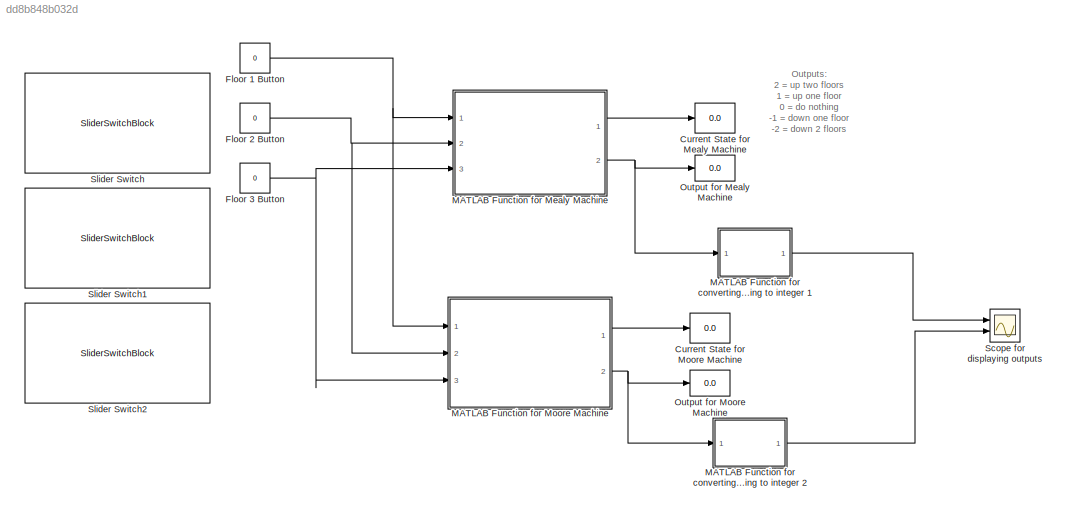
MODEL slx_dd8b848b032d
KIND model
CONFIG AbsTol = auto
CONFIG EnableMultiTasking = off
CONFIG FixedStep = 1
CONFIG MaxStep = auto
CONFIG MinStep = auto
CONFIG RelTol = 1e-3
CONFIG SampleTimeConstraint = Unconstrained
CONFIG Solver = FixedStepDiscrete
CONFIG SolverName = FixedStepDiscrete
CONFIG StartTime = 0.0
CONFIG StopTime = inf
BLOCK [Display] Current State for Mealy Machine
  Decimation = 1
  Ports = [1]
BLOCK [Display] Current State for Moore Machine
  Decimation = 1
  Ports = [1]
BLOCK [Constant] Floor 1 Button
  Value = 0
BLOCK [Constant] Floor 2 Button
  Value = 0
BLOCK [Constant] Floor 3 Button
  Value = 0
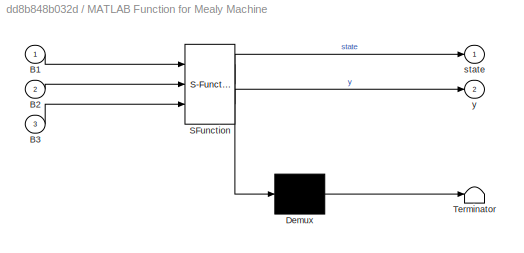
BLOCK [SubSystem] MATLAB Function for Mealy Machine
  ErrorFcn = Stateflow.Translate.translate
  PermitHierarchicalResolution = ExplicitOnly
  Ports = [3, 2]
  RequestExecContextInheritance = off
  SFBlockType = MATLAB Function
  TreatAsAtomicUnit = on
BLOCK [Demux] MATLAB Function for Mealy Machine/ Demux 
  DisplayOption = bar
  Outputs = 1
  Ports = [1, 1]
BLOCK [S-Function] MATLAB Function for Mealy Machine/ SFunction 
  EnableBusSupport = on
  FunctionName = sf_sfun
  PortCounts = [3 3]
  Ports = [3, 3]
  SFcnIsStateOwnerBlock = off
  SFunctionDeploymentMode = off
  Tag = Stateflow S-Function 2
BLOCK [Terminator] MATLAB Function for Mealy Machine/ Terminator 
BLOCK [Inport] MATLAB Function for Mealy Machine/B1
  IconDisplay = Port number
BLOCK [Inport] MATLAB Function for Mealy Machine/B2
  IconDisplay = Port number
  Port = 2
BLOCK [Inport] MATLAB Function for Mealy Machine/B3
  IconDisplay = Port number
  Port = 3
BLOCK [Outport] MATLAB Function for Mealy Machine/state
  IconDisplay = Port number
BLOCK [Outport] MATLAB Function for Mealy Machine/y
  IconDisplay = Port number
  Port = 2
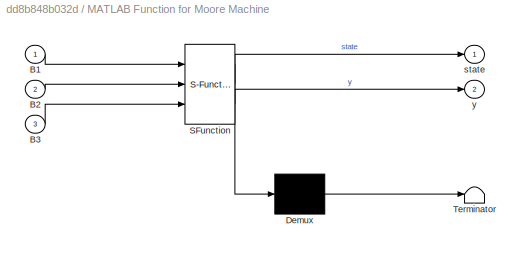
BLOCK [SubSystem] MATLAB Function for Moore Machine
  ErrorFcn = Stateflow.Translate.translate
  PermitHierarchicalResolution = ExplicitOnly
  Ports = [3, 2]
  RequestExecContextInheritance = off
  SFBlockType = MATLAB Function
  TreatAsAtomicUnit = on
BLOCK [Demux] MATLAB Function for Moore Machine/ Demux 
  DisplayOption = bar
  Outputs = 1
  Ports = [1, 1]
BLOCK [S-Function] MATLAB Function for Moore Machine/ SFunction 
  EnableBusSupport = on
  FunctionName = sf_sfun
  PortCounts = [3 3]
  Ports = [3, 3]
  SFcnIsStateOwnerBlock = off
  SFunctionDeploymentMode = off
  Tag = Stateflow S-Function 1
BLOCK [Terminator] MATLAB Function for Moore Machine/ Terminator 
BLOCK [Inport] MATLAB Function for Moore Machine/B1
  IconDisplay = Port number
BLOCK [Inport] MATLAB Function for Moore Machine/B2
  IconDisplay = Port number
  Port = 2
BLOCK [Inport] MATLAB Function for Moore Machine/B3
  IconDisplay = Port number
  Port = 3
BLOCK [Outport] MATLAB Function for Moore Machine/state
  IconDisplay = Port number
BLOCK [Outport] MATLAB Function for Moore Machine/y
  IconDisplay = Port number
  Port = 2
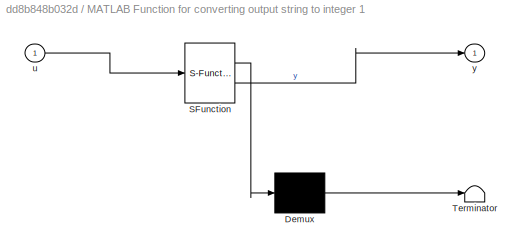
BLOCK [SubSystem] MATLAB Function for converting output string to integer 1
  ErrorFcn = Stateflow.Translate.translate
  PermitHierarchicalResolution = ExplicitOnly
  Ports = [1, 1]
  RequestExecContextInheritance = off
  SFBlockType = MATLAB Function
  TreatAsAtomicUnit = on
BLOCK [Demux] MATLAB Function for converting output string to integer 1/ Demux 
  DisplayOption = bar
  Outputs = 1
  Ports = [1, 1]
BLOCK [S-Function] MATLAB Function for converting output string to integer 1/ SFunction 
  EnableBusSupport = on
  FunctionName = sf_sfun
  PortCounts = [1 2]
  Ports = [1, 2]
  SFcnIsStateOwnerBlock = off
  SFunctionDeploymentMode = off
  Tag = Stateflow S-Function 3
BLOCK [Terminator] MATLAB Function for converting output string to integer 1/ Terminator 
BLOCK [Inport] MATLAB Function for converting output string to integer 1/u
  IconDisplay = Port number
BLOCK [Outport] MATLAB Function for converting output string to integer 1/y
  IconDisplay = Port number
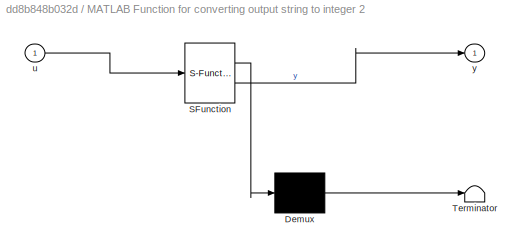
BLOCK [SubSystem] MATLAB Function for converting output string to integer 2
  ErrorFcn = Stateflow.Translate.translate
  PermitHierarchicalResolution = ExplicitOnly
  Ports = [1, 1]
  RequestExecContextInheritance = off
  SFBlockType = MATLAB Function
  TreatAsAtomicUnit = on
BLOCK [Demux] MATLAB Function for converting output string to integer 2/ Demux 
  DisplayOption = bar
  Outputs = 1
  Ports = [1, 1]
BLOCK [S-Function] MATLAB Function for converting output string to integer 2/ SFunction 
  EnableBusSupport = on
  FunctionName = sf_sfun
  PortCounts = [1 2]
  Ports = [1, 2]
  SFcnIsStateOwnerBlock = off
  SFunctionDeploymentMode = off
  Tag = Stateflow S-Function 4
BLOCK [Terminator] MATLAB Function for converting output string to integer 2/ Terminator 
BLOCK [Inport] MATLAB Function for converting output string to integer 2/u
  IconDisplay = Port number
BLOCK [Outport] MATLAB Function for converting output string to integer 2/y
  IconDisplay = Port number
BLOCK [Display] Output for Mealy Machine
  Decimation = 1
  Ports = [1]
BLOCK [Display] Output for Moore Machine
  Decimation = 1
  Ports = [1]
BLOCK [Scope] Scope for displaying outputs
  Floating = off
  NumInputPorts = 2
  Ports = [2]
  ScopeSpecificationString = Simulink.scopes.TimeScopeBlockCfg('CurrentConfiguration', extmgr.ConfigurationSet(extmgr.Configuration('Core','General UI',true),extmgr.Configuration('Core','Source UI',true),extmgr.Configuration('Sources','WiredSimulink',true),extmgr.Configuration('Visuals','Time Domain',true,'SerializedDisplays',{struct('MinYLimReal','-0.25','MaxYLimReal','2.25','YLabelReal','','MinYLimMag','0.00000','MaxYLimMag...<+1398ch>
BLOCK [SliderSwitchBlock] Slider Switch
BLOCK [SliderSwitchBlock] Slider Switch1
BLOCK [SliderSwitchBlock] Slider Switch2
ANNOTATION (root): Outputs: 2 = up two floors 1 = up one floor 0 = do nothing -1 = down one floor -2 = down 2 floors
NET Floor 1 Button:1 -> MATLAB Function for Mealy Machine:1, MATLAB Function for Moore Machine:1
NET Floor 2 Button:1 -> MATLAB Function for Mealy Machine:2, MATLAB Function for Moore Machine:2
NET Floor 3 Button:1 -> MATLAB Function for Mealy Machine:3, MATLAB Function for Moore Machine:3
LINE MATLAB Function for Mealy Machine:1 -> Current State for Mealy Machine:1
NET MATLAB Function for Mealy Machine:2 -> MATLAB Function for converting output string to integer 1:1, Output for Mealy Machine:1
LINE MATLAB Function for Moore Machine:1 -> Current State for Moore Machine:1
NET MATLAB Function for Moore Machine:2 -> MATLAB Function for converting output string to integer 2:1, Output for Moore Machine:1
LINE MATLAB Function for converting output string to integer 1:1 -> Scope for displaying outputs:1
LINE MATLAB Function for converting output string to integer 2:1 -> Scope for displaying outputs:2
note: NET lines group one-source signal fan-out (src -> all destinations, sorted); 1:1 wires keep LINE
CHART MATLAB Function for Moore Machine states=1 transitions=1
  STATE_LABEL 'eML_blk_kernel()'
  STATE_LABEL 'SCRIPT:\nfunction [state,y] = fcn(B1,B2,B3)\npersistent current_state %state variable that persistes with every function call\nif(isempty(current_state)) %initializing the state variable during first function call\n    current_state = 1;\nend\nswitch current_state \n    case 1 %state q1 represents being in the first floor\n        if(B1) %B1, the first floor button, is pressed\n            current_state = ...<+2008ch>'
CHART MATLAB Function for Mealy Machine states=1 transitions=1
  STATE_LABEL 'eML_blk_kernel()'
  STATE_LABEL 'SCRIPT:\nfunction [state,y] = fcn(B1,B2,B3)\npersistent current_state %state variable that persistes with every function call\nif(isempty(current_state)) %initializing the state variable during first function call\n    current_state = 1;\nend\nswitch current_state\n    case 1  %state q1 represents being in the first floor\n        if(B2) %B2, the second floor button, is pressed\n            current_state =...<+1116ch>'
CHART MATLAB Function for converting output string to integer 1 states=1 transitions=1
  STATE_LABEL 'eML_blk_kernel()'
  STATE_LABEL 'SCRIPT:\nfunction y = fcn(u)\nif u == "s"\n    y = 0;\nelseif u == "u1"\n    y = 1;\nelseif u == "u2"\n    y = 2;\nelseif u == "d1"\n    y = -1;\nelse\n    y = -2;\nend\n'
CHART MATLAB Function for converting output string to integer 2 states=1 transitions=1
  STATE_LABEL 'eML_blk_kernel()'
  STATE_LABEL 'SCRIPT:\nfunction y = fcn(u)\nif u == "s"\n    y = 0;\nelseif u == "u1"\n    y = 1;\nelseif u == "u2"\n    y = 2;\nelseif u == "d1"\n    y = -1;\nelse\n    y = -2;\nend\n'
